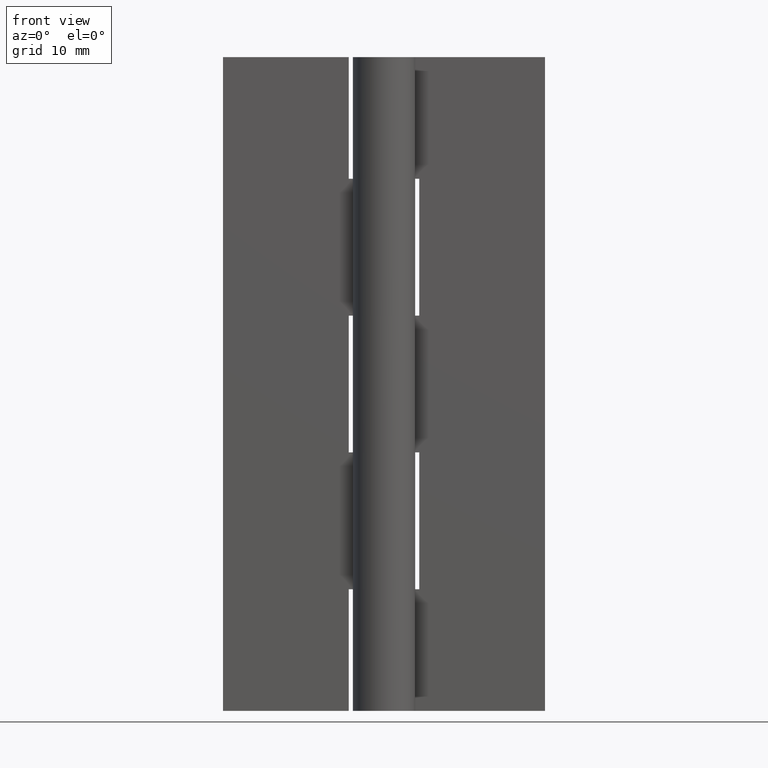
[diagram: clean part render]
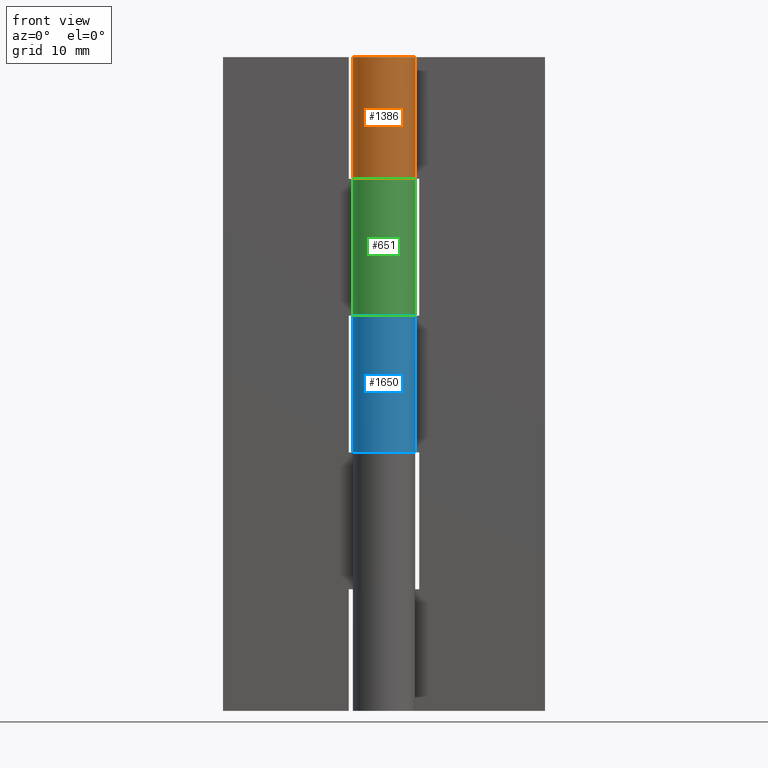
[diagram: same view with three faces highlighted in distinct colors, each labeled with its STEP entity id]
A machine part, front view with three faces highlighted in distinct colors.
Their STEP definitions:

[orange] entity #1386 — the highlighted face is a freeform B-spline surface patch.
#1129=CARTESIAN_POINT('',(2.739981751764055,1.450000000000000,52.899993999999801));
#1130=VERTEX_POINT('',#1129);
#1136=CARTESIAN_POINT('',(0.0,3.099998000000000,52.899993999999801));
#1137=VERTEX_POINT('',#1136);
#1138=CARTESIAN_POINT('',(0.0,3.099998000000000,52.899993999999801));
#1139=CARTESIAN_POINT('',(-2.356097610603767,3.099996737895512,52.899993999999801));
#1140=CARTESIAN_POINT('',(-2.986848545660752,0.829898189834370,52.899993999999801));
#1141=CARTESIAN_POINT('',(-3.617599480717737,-1.440200358226770,52.899993999999801));
#1142=CARTESIAN_POINT('',(-1.599218559171948,-2.655655344977898,52.899993999999801));
#1143=CARTESIAN_POINT('',(0.419162362373842,-3.871110331729027,52.899993999999801));
#1144=CARTESIAN_POINT('',(2.130594885355314,-2.251790737784721,52.899993999999801));
#1145=CARTESIAN_POINT('',(3.842027408336786,-0.632471143840416,52.899993999999801));
#1146=CARTESIAN_POINT('',(2.739981751764055,1.450000000000000,52.899993999999801));
#1154=(BOUNDED_CURVE()B_SPLINE_CURVE(2,(#1138,#1139,#1140,#1141,#1142,#1143,#1144,#1145,#1146),.UNSPECIFIED.,.F.,.U.)B_SPLINE_CURVE_WITH_KNOTS((3,2,2,2,3),(0.0,0.250000000000000,0.500000000000000,0.750000000000000,1.0),.UNSPECIFIED.)CURVE()GEOMETRIC_REPRESENTATION_ITEM()RATIONAL_B_SPLINE_CURVE((1.0,0.796150117301085,1.0,0.796150117301085,1.0,0.796150117301085,1.0,0.796150117301085,1.0))REPRESENTATION_ITEM(''));
#1155=EDGE_CURVE('',#1137,#1130,#1154,.T.);
#1157=CARTESIAN_POINT('',(0.003521362805220,3.099998000000000,52.899993999999801));
#1158=VERTEX_POINT('',#1157);
#1159=CARTESIAN_POINT('',(0.0,3.099998000000000,52.899993999999801));
#1160=CARTESIAN_POINT('',(0.003521362805220,3.099998000000000,52.899993999999801));
#1161=QUASI_UNIFORM_CURVE('',1,(#1159,#1160),.UNSPECIFIED.,.F.,.U.);
#1162=EDGE_CURVE('',#1137,#1158,#1161,.T.);
#1215=CARTESIAN_POINT('',(0.003521362805220,3.099998000000000,65.0));
#1216=VERTEX_POINT('',#1215);
#1222=CARTESIAN_POINT('',(2.739981751764055,1.450000000000000,65.0));
#1223=VERTEX_POINT('',#1222);
#1224=CARTESIAN_POINT('',(2.739981751764052,1.450000000000000,65.0));
#1225=CARTESIAN_POINT('',(3.842352259281344,-0.633086258124317,65.0));
#1226=CARTESIAN_POINT('',(2.129955333572984,-2.252396562993293,65.0));
#1227=CARTESIAN_POINT('',(0.417558407864625,-3.871706867862267,65.0));
#1228=CARTESIAN_POINT('',(-1.600726611546711,-2.654745621540072,65.0));
#1229=CARTESIAN_POINT('',(-3.619011630958046,-1.437784375217877,65.0));
#1230=CARTESIAN_POINT('',(-2.986140433580759,0.832445380150624,65.0));
#1231=CARTESIAN_POINT('',(-2.353269236203469,3.102675135519129,65.0));
#1232=CARTESIAN_POINT('',(0.003521362805217,3.099997999999999,65.0));
#1240=(BOUNDED_CURVE()B_SPLINE_CURVE(2,(#1224,#1225,#1226,#1227,#1228,#1229,#1230,#1231,#1232),.UNSPECIFIED.,.F.,.U.)B_SPLINE_CURVE_WITH_KNOTS((3,2,2,2,3),(0.0,0.250000000000000,0.500000000000000,0.750000000000000,1.0),.UNSPECIFIED.)CURVE()GEOMETRIC_REPRESENTATION_ITEM()RATIONAL_B_SPLINE_CURVE((1.0,0.796064190964140,1.0,0.796064190964140,1.0,0.796064190964140,1.0,0.796064190964140,1.0))REPRESENTATION_ITEM(''));
#1241=EDGE_CURVE('',#1223,#1216,#1240,.T.);
#1349=CARTESIAN_POINT('',(2.727223945182077,1.473855336464710,52.597493849999793));
#1350=CARTESIAN_POINT('',(2.727223945182077,1.473855336464710,65.310062653750023));
#1351=CARTESIAN_POINT('',(4.494108846209829,-1.795590918703038,52.597493849999786));
#1352=CARTESIAN_POINT('',(4.494108846209829,-1.795590918703038,65.310062653750009));
#1353=CARTESIAN_POINT('',(0.960755987581001,-2.947362877612333,52.597493849999793));
#1354=CARTESIAN_POINT('',(0.960755987581001,-2.947362877612333,65.310062653750023));
#1355=CARTESIAN_POINT('',(-2.572596871047827,-4.099134836521628,52.597493849999786));
#1356=CARTESIAN_POINT('',(-2.572596871047827,-4.099134836521628,65.310062653750009));
#1357=CARTESIAN_POINT('',(-3.071894360100626,-0.416491344906422,52.597493849999793));
#1358=CARTESIAN_POINT('',(-3.071894360100626,-0.416491344906422,65.310062653750023));
#1359=CARTESIAN_POINT('',(-3.571191849153425,3.266152146708783,52.597493849999786));
#1360=CARTESIAN_POINT('',(-3.571191849153425,3.266152146708783,65.310062653750009));
#1361=CARTESIAN_POINT('',(0.141283570192318,3.096778802690581,52.597493849999793));
#1362=CARTESIAN_POINT('',(0.141283570192318,3.096778802690581,65.310062653750023));
#1370=(BOUNDED_SURFACE()B_SPLINE_SURFACE(1,2,((#1349,#1351,#1353,#1355,#1357,#1359,#1361),(#1350,#1352,#1354,#1356,#1358,#1360,#1362)),.UNSPECIFIED.,.F.,.F.,.U.)B_SPLINE_SURFACE_WITH_KNOTS((2,2),(3,2,2,3),(0.0,12.712568803750241),(0.0,5.804186543518783,11.608373087037570,17.412559630556348),.UNSPECIFIED.)GEOMETRIC_REPRESENTATION_ITEM()RATIONAL_B_SPLINE_SURFACE(((1.0,0.640556560368615,1.0,0.640556560368615,1.0,0.640556560368615,1.0),(1.0,0.640556560368615,1.0,0.640556560368615,1.0,0.640556560368615,1.0)))REPRESENTATION_ITEM('')SURFACE());
#1371=ORIENTED_EDGE('',*,*,#1162,.F.);
#1372=ORIENTED_EDGE('',*,*,#1155,.T.);
#1373=CARTESIAN_POINT('',(2.739981751764055,1.450000000000000,52.899993999999801));
#1374=CARTESIAN_POINT('',(2.739981751764055,1.450000000000000,65.0));
#1375=QUASI_UNIFORM_CURVE('',1,(#1373,#1374),.UNSPECIFIED.,.F.,.U.);
#1376=EDGE_CURVE('',#1130,#1223,#1375,.T.);
#1377=ORIENTED_EDGE('',*,*,#1376,.T.);
#1378=ORIENTED_EDGE('',*,*,#1241,.T.);
#1379=CARTESIAN_POINT('',(0.003521362805220,3.099998000000000,52.899993999999801));
#1380=CARTESIAN_POINT('',(0.003521362805220,3.099998000000000,65.0));
#1381=QUASI_UNIFORM_CURVE('',1,(#1379,#1380),.UNSPECIFIED.,.F.,.U.);
#1382=EDGE_CURVE('',#1158,#1216,#1381,.T.);
#1383=ORIENTED_EDGE('',*,*,#1382,.F.);
#1384=EDGE_LOOP('',(#1371,#1372,#1377,#1378,#1383));
#1385=FACE_OUTER_BOUND('',#1384,.T.);
#1386=ADVANCED_FACE('',(#1385),#1370,.T.);

[blue] entity #1650 — the highlighted face is a freeform B-spline surface patch.
#862=CARTESIAN_POINT('',(2.739981751764055,1.450000000000000,25.699996999999900));
#863=VERTEX_POINT('',#862);
#869=CARTESIAN_POINT('',(0.0,3.099998000000000,25.699996999999900));
#870=VERTEX_POINT('',#869);
#871=CARTESIAN_POINT('',(0.0,3.099998000000000,25.699996999999900));
#872=CARTESIAN_POINT('',(-2.356097610603767,3.099996737895512,25.699996999999900));
#873=CARTESIAN_POINT('',(-2.986848545660752,0.829898189834370,25.699996999999900));
#874=CARTESIAN_POINT('',(-3.617599480717737,-1.440200358226770,25.699996999999900));
#875=CARTESIAN_POINT('',(-1.599218559171948,-2.655655344977898,25.699996999999900));
#876=CARTESIAN_POINT('',(0.419162362373842,-3.871110331729027,25.699996999999900));
#877=CARTESIAN_POINT('',(2.130594885355314,-2.251790737784721,25.699996999999900));
#878=CARTESIAN_POINT('',(3.842027408336786,-0.632471143840416,25.699996999999900));
#879=CARTESIAN_POINT('',(2.739981751764055,1.450000000000000,25.699996999999900));
#887=(BOUNDED_CURVE()B_SPLINE_CURVE(2,(#871,#872,#873,#874,#875,#876,#877,#878,#879),.UNSPECIFIED.,.F.,.U.)B_SPLINE_CURVE_WITH_KNOTS((3,2,2,2,3),(0.0,0.250000000000000,0.500000000000000,0.750000000000000,1.0),.UNSPECIFIED.)CURVE()GEOMETRIC_REPRESENTATION_ITEM()RATIONAL_B_SPLINE_CURVE((1.0,0.796150117301085,1.0,0.796150117301085,1.0,0.796150117301085,1.0,0.796150117301085,1.0))REPRESENTATION_ITEM(''));
#888=EDGE_CURVE('',#870,#863,#887,.T.);
#890=CARTESIAN_POINT('',(0.003521362805223,3.099998000000000,25.699996999999900));
#891=VERTEX_POINT('',#890);
#892=CARTESIAN_POINT('',(0.003521362805223,3.099998000000000,25.699996999999900));
#893=CARTESIAN_POINT('',(0.0,3.099998000000000,25.699996999999900));
#894=QUASI_UNIFORM_CURVE('',1,(#892,#893),.UNSPECIFIED.,.F.,.U.);
#895=EDGE_CURVE('',#891,#870,#894,.T.);
#1032=CARTESIAN_POINT('',(0.003521362805220,3.099998000000000,39.300002999999997));
#1033=VERTEX_POINT('',#1032);
#1039=CARTESIAN_POINT('',(0.0,3.099998000000000,39.300002999999997));
#1040=VERTEX_POINT('',#1039);
#1041=CARTESIAN_POINT('',(0.003521362805220,3.099998000000000,39.300002999999997));
#1042=CARTESIAN_POINT('',(0.0,3.099998000000000,39.300002999999997));
#1043=QUASI_UNIFORM_CURVE('',1,(#1041,#1042),.UNSPECIFIED.,.F.,.U.);
#1044=EDGE_CURVE('',#1033,#1040,#1043,.T.);
#1046=CARTESIAN_POINT('',(2.739981751764055,1.450000000000000,39.300003000000054));
#1047=VERTEX_POINT('',#1046);
#1048=CARTESIAN_POINT('',(2.739981751764055,1.450000000000000,39.300003000000054));
#1049=CARTESIAN_POINT('',(3.842027408336784,-0.632471143840415,39.300003000000082));
#1050=CARTESIAN_POINT('',(2.130594885355314,-2.251790737784720,39.300003000000068));
#1051=CARTESIAN_POINT('',(0.419162362373842,-3.871110331729025,39.300003000000068));
#1052=CARTESIAN_POINT('',(-1.599218559171947,-2.655655344977898,39.300003000000032));
#1053=CARTESIAN_POINT('',(-3.617599480717735,-1.440200358226773,39.300002999999975));
#1054=CARTESIAN_POINT('',(-2.986848545660753,0.829898189834366,39.300002999999982));
#1055=CARTESIAN_POINT('',(-2.356097610603770,3.099996737895512,39.300002999999968));
#1056=CARTESIAN_POINT('',(0.0,3.099998000000000,39.300002999999997));
#1064=(BOUNDED_CURVE()B_SPLINE_CURVE(2,(#1048,#1049,#1050,#1051,#1052,#1053,#1054,#1055,#1056),.UNSPECIFIED.,.F.,.U.)B_SPLINE_CURVE_WITH_KNOTS((3,2,2,2,3),(0.0,0.250000000000000,0.500000000000000,0.750000000000000,1.0),.UNSPECIFIED.)CURVE()GEOMETRIC_REPRESENTATION_ITEM()RATIONAL_B_SPLINE_CURVE((1.0,0.796150117301085,1.0,0.796150117301085,1.0,0.796150117301085,1.0,0.796150117301085,1.0))REPRESENTATION_ITEM(''));
#1065=EDGE_CURVE('',#1047,#1040,#1064,.T.);
#1341=CARTESIAN_POINT('',(2.739981751764055,1.450000000000000,25.699996999999900));
#1342=CARTESIAN_POINT('',(2.739981751764055,1.450000000000000,39.300003000000054));
#1343=QUASI_UNIFORM_CURVE('',1,(#1341,#1342),.UNSPECIFIED.,.F.,.U.);
#1344=EDGE_CURVE('',#863,#1047,#1343,.T.);
#1395=CARTESIAN_POINT('',(0.003521362805223,3.099998000000000,25.699996999999900));
#1396=CARTESIAN_POINT('',(0.003521362805220,3.099998000000000,39.300002999999997));
#1397=QUASI_UNIFORM_CURVE('',1,(#1395,#1396),.UNSPECIFIED.,.F.,.U.);
#1398=EDGE_CURVE('',#891,#1033,#1397,.T.);
#1620=CARTESIAN_POINT('',(2.699834918711259,1.523447213298630,25.359996849999892));
#1621=CARTESIAN_POINT('',(2.699834918711259,1.523447213298630,39.648503153750077));
#1622=CARTESIAN_POINT('',(4.558915972059315,-1.771193979864725,25.359996849999895));
#1623=CARTESIAN_POINT('',(4.558915972059315,-1.771193979864725,39.648503153750084));
#1624=CARTESIAN_POINT('',(0.963178343373891,-2.946572157415378,25.359996849999892));
#1625=CARTESIAN_POINT('',(0.963178343373891,-2.946572157415378,39.648503153750077));
#1626=CARTESIAN_POINT('',(-2.632559285311531,-4.121950334966032,25.359996849999895));
#1627=CARTESIAN_POINT('',(-2.632559285311531,-4.121950334966032,39.648503153750084));
#1628=CARTESIAN_POINT('',(-3.078396003541829,-0.365346473060416,25.359996849999892));
#1629=CARTESIAN_POINT('',(-3.078396003541829,-0.365346473060416,39.648503153750077));
#1630=CARTESIAN_POINT('',(-3.524232721772127,3.391257388845201,25.359996849999895));
#1631=CARTESIAN_POINT('',(-3.524232721772127,3.391257388845201,39.648503153750084));
#1632=CARTESIAN_POINT('',(0.246733547457018,3.090165457796599,25.359996849999892));
#1633=CARTESIAN_POINT('',(0.246733547457018,3.090165457796599,39.648503153750077));
#1641=(BOUNDED_SURFACE()B_SPLINE_SURFACE(1,2,((#1620,#1622,#1624,#1626,#1628,#1630,#1632),(#1621,#1623,#1625,#1627,#1629,#1631,#1633)),.UNSPECIFIED.,.F.,.F.,.U.)B_SPLINE_SURFACE_WITH_KNOTS((2,2),(3,2,2,3),(0.0,14.288506303750189),(0.0,5.870281529289074,11.740563058578150,17.610844587867220),.UNSPECIFIED.)GEOMETRIC_REPRESENTATION_ITEM()RATIONAL_B_SPLINE_SURFACE(((1.0,0.633830967398710,1.0,0.633830967398710,1.0,0.633830967398710,1.0),(1.0,0.633830967398710,1.0,0.633830967398710,1.0,0.633830967398710,1.0)))REPRESENTATION_ITEM('')SURFACE());
#1642=ORIENTED_EDGE('',*,*,#895,.T.);
#1643=ORIENTED_EDGE('',*,*,#888,.T.);
#1644=ORIENTED_EDGE('',*,*,#1344,.T.);
#1645=ORIENTED_EDGE('',*,*,#1065,.T.);
#1646=ORIENTED_EDGE('',*,*,#1044,.F.);
#1647=ORIENTED_EDGE('',*,*,#1398,.F.);
#1648=EDGE_LOOP('',(#1642,#1643,#1644,#1645,#1646,#1647));
#1649=FACE_OUTER_BOUND('',#1648,.T.);
#1650=ADVANCED_FACE('',(#1649),#1641,.T.);

[green] entity #651 — the highlighted face is a freeform B-spline surface patch.
#134=CARTESIAN_POINT('',(-2.739981751764050,1.450000000000000,39.300003000000054));
#135=VERTEX_POINT('',#134);
#136=CARTESIAN_POINT('',(0.0,3.099998000000000,39.300002999999997));
#137=VERTEX_POINT('',#136);
#138=CARTESIAN_POINT('',(-2.739981751764050,1.450000000000000,39.300003000000054));
#139=CARTESIAN_POINT('',(-3.842027408336779,-0.632471143840417,39.300003000000075));
#140=CARTESIAN_POINT('',(-2.130594885355309,-2.251790737784723,39.300003000000068));
#141=CARTESIAN_POINT('',(-0.419162362373838,-3.871110331729029,39.300003000000061));
#142=CARTESIAN_POINT('',(1.599218559171949,-2.655655344977900,39.300003000000018));
#143=CARTESIAN_POINT('',(3.617599480717734,-1.440200358226770,39.300002999999990));
#144=CARTESIAN_POINT('',(2.986848545660751,0.829898189834370,39.300002999999982));
#145=CARTESIAN_POINT('',(2.356097610603767,3.099996737895512,39.300002999999975));
#146=CARTESIAN_POINT('',(0.0,3.099998000000000,39.300002999999997));
#154=(BOUNDED_CURVE()B_SPLINE_CURVE(2,(#138,#139,#140,#141,#142,#143,#144,#145,#146),.UNSPECIFIED.,.F.,.U.)B_SPLINE_CURVE_WITH_KNOTS((3,2,2,2,3),(0.0,0.250000000000000,0.500000000000000,0.750000000000000,1.0),.UNSPECIFIED.)CURVE()GEOMETRIC_REPRESENTATION_ITEM()RATIONAL_B_SPLINE_CURVE((1.0,0.796150117301085,1.0,0.796150117301085,1.0,0.796150117301085,1.0,0.796150117301085,1.0))REPRESENTATION_ITEM(''));
#155=EDGE_CURVE('',#135,#137,#154,.T.);
#199=CARTESIAN_POINT('',(-0.003521362805221,3.099998000000000,39.300002999999997));
#200=VERTEX_POINT('',#199);
#206=CARTESIAN_POINT('',(-0.003521362805221,3.099998000000000,39.300002999999997));
#207=CARTESIAN_POINT('',(0.0,3.099998000000000,39.300002999999997));
#208=QUASI_UNIFORM_CURVE('',1,(#206,#207),.UNSPECIFIED.,.F.,.U.);
#209=EDGE_CURVE('',#200,#137,#208,.T.);
#388=CARTESIAN_POINT('',(-2.739981751764050,1.450000000000000,52.899993999999801));
#389=VERTEX_POINT('',#388);
#390=CARTESIAN_POINT('',(0.0,3.099998000000050,52.899993999999801));
#391=VERTEX_POINT('',#390);
#392=CARTESIAN_POINT('',(-2.739981751764050,1.450000000000000,52.899993999999801));
#393=CARTESIAN_POINT('',(-3.842027408336779,-0.632471143840449,52.899993999999801));
#394=CARTESIAN_POINT('',(-2.130594885355309,-2.251790737784744,52.899993999999801));
#395=CARTESIAN_POINT('',(-0.419162362373838,-3.871110331729040,52.899993999999801));
#396=CARTESIAN_POINT('',(1.599218559171949,-2.655655344977875,52.899993999999801));
#397=CARTESIAN_POINT('',(3.617599480717734,-1.440200358226708,52.899993999999801));
#398=CARTESIAN_POINT('',(2.986848545660751,0.829898189834442,52.899993999999801));
#399=CARTESIAN_POINT('',(2.356097610603767,3.099996737895593,52.899993999999801));
#400=CARTESIAN_POINT('',(0.0,3.099998000000050,52.899993999999801));
#408=(BOUNDED_CURVE()B_SPLINE_CURVE(2,(#392,#393,#394,#395,#396,#397,#398,#399,#400),.UNSPECIFIED.,.F.,.U.)B_SPLINE_CURVE_WITH_KNOTS((3,2,2,2,3),(0.0,0.250000000000000,0.500000000000000,0.750000000000000,1.0),.UNSPECIFIED.)CURVE()GEOMETRIC_REPRESENTATION_ITEM()RATIONAL_B_SPLINE_CURVE((1.0,0.796150117301085,1.0,0.796150117301085,1.0,0.796150117301085,1.0,0.796150117301085,1.0))REPRESENTATION_ITEM(''));
#409=EDGE_CURVE('',#389,#391,#408,.T.);
#411=CARTESIAN_POINT('',(-0.003521362805221,3.099998000000050,52.899993999999801));
#412=VERTEX_POINT('',#411);
#413=CARTESIAN_POINT('',(-0.003521362805221,3.099998000000050,52.899993999999801));
#414=CARTESIAN_POINT('',(0.0,3.099998000000050,52.899993999999801));
#415=QUASI_UNIFORM_CURVE('',1,(#413,#414),.UNSPECIFIED.,.F.,.U.);
#416=EDGE_CURVE('',#412,#391,#415,.T.);
#613=CARTESIAN_POINT('',(-0.087215809709333,3.098772886569253,38.960003224999980));
#614=CARTESIAN_POINT('',(-0.087215809709333,3.098772886569253,53.248493769374797));
#615=CARTESIAN_POINT('',(3.694254208917625,3.205203393624339,38.960003224999980));
#616=CARTESIAN_POINT('',(3.694254208917625,3.205203393624339,53.248493769374804));
#617=CARTESIAN_POINT('',(3.055487706738078,-0.523445196723091,38.960003224999980));
#618=CARTESIAN_POINT('',(3.055487706738078,-0.523445196723091,53.248493769374797));
#619=CARTESIAN_POINT('',(2.416721204558533,-4.252093787070521,38.960003224999980));
#620=CARTESIAN_POINT('',(2.416721204558533,-4.252093787070521,53.248493769374804));
#621=CARTESIAN_POINT('',(-1.113692359485487,-2.893041535896719,38.960003224999980));
#622=CARTESIAN_POINT('',(-1.113692359485487,-2.893041535896719,53.248493769374797));
#623=CARTESIAN_POINT('',(-4.644105923529505,-1.533989284722917,38.960003224999980));
#624=CARTESIAN_POINT('',(-4.644105923529505,-1.533989284722917,53.248493769374804));
#625=CARTESIAN_POINT('',(-2.617769613640667,1.660506624467241,38.960003224999980));
#626=CARTESIAN_POINT('',(-2.617769613640667,1.660506624467241,53.248493769374797));
#634=(BOUNDED_SURFACE()B_SPLINE_SURFACE(1,2,((#613,#615,#617,#619,#621,#623,#625),(#614,#616,#618,#620,#622,#624,#626)),.UNSPECIFIED.,.F.,.F.,.U.)B_SPLINE_SURFACE_WITH_KNOTS((2,2),(3,2,2,3),(0.0,14.288490544374829),(0.0,5.870281529289077,11.740563058578150,17.610844587867231),.UNSPECIFIED.)GEOMETRIC_REPRESENTATION_ITEM()RATIONAL_B_SPLINE_SURFACE(((1.0,0.633830967398710,1.0,0.633830967398710,1.0,0.633830967398710,1.0),(1.0,0.633830967398710,1.0,0.633830967398710,1.0,0.633830967398710,1.0)))REPRESENTATION_ITEM('')SURFACE());
#635=ORIENTED_EDGE('',*,*,#155,.T.);
#636=ORIENTED_EDGE('',*,*,#209,.F.);
#637=CARTESIAN_POINT('',(-0.003521362805221,3.099998000000000,39.300002999999997));
#638=CARTESIAN_POINT('',(-0.003521362805221,3.099998000000050,52.899993999999801));
#639=QUASI_UNIFORM_CURVE('',1,(#637,#638),.UNSPECIFIED.,.F.,.U.);
#640=EDGE_CURVE('',#200,#412,#639,.T.);
#641=ORIENTED_EDGE('',*,*,#640,.T.);
#642=ORIENTED_EDGE('',*,*,#416,.T.);
#643=ORIENTED_EDGE('',*,*,#409,.F.);
#644=CARTESIAN_POINT('',(-2.739981751764050,1.450000000000000,39.300003000000054));
#645=CARTESIAN_POINT('',(-2.739981751764050,1.450000000000000,52.899993999999801));
#646=QUASI_UNIFORM_CURVE('',1,(#644,#645),.UNSPECIFIED.,.F.,.U.);
#647=EDGE_CURVE('',#135,#389,#646,.T.);
#648=ORIENTED_EDGE('',*,*,#647,.F.);
#649=EDGE_LOOP('',(#635,#636,#641,#642,#643,#648));
#650=FACE_OUTER_BOUND('',#649,.T.);
#651=ADVANCED_FACE('',(#650),#634,.T.);